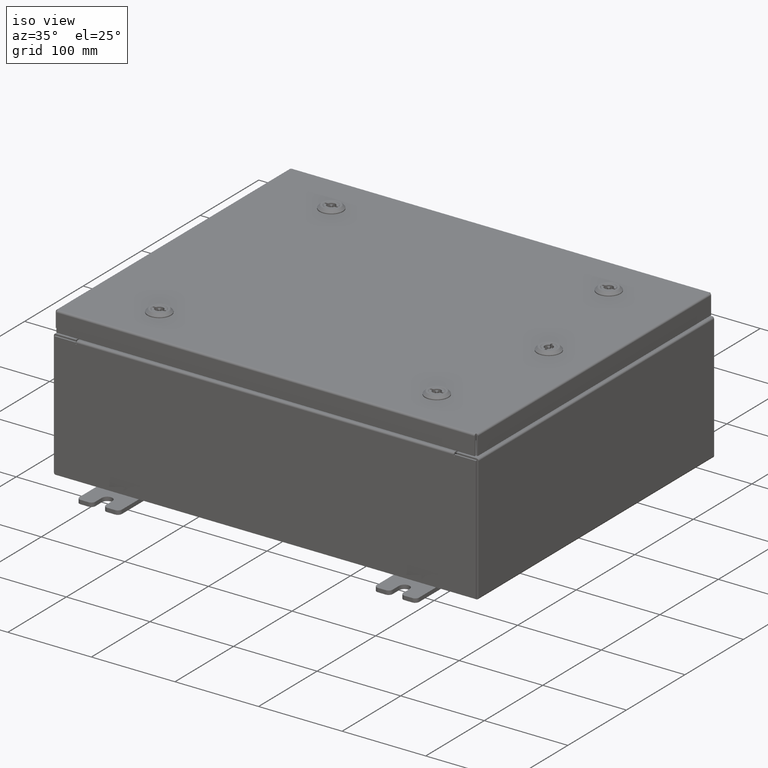
[diagram: clean part render]
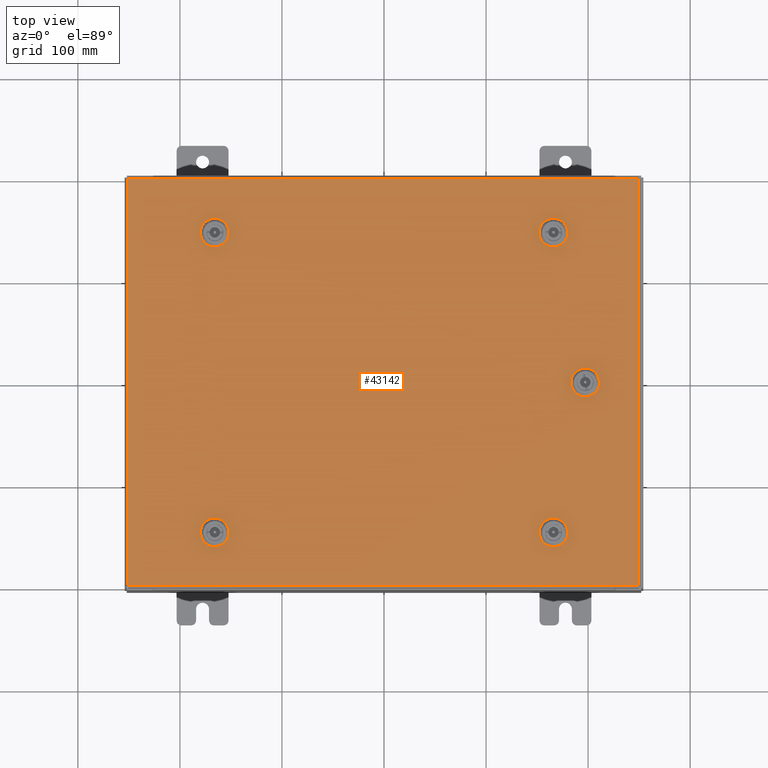
[diagram: tour spotlight — one face highlighted and labeled with its STEP entity id]
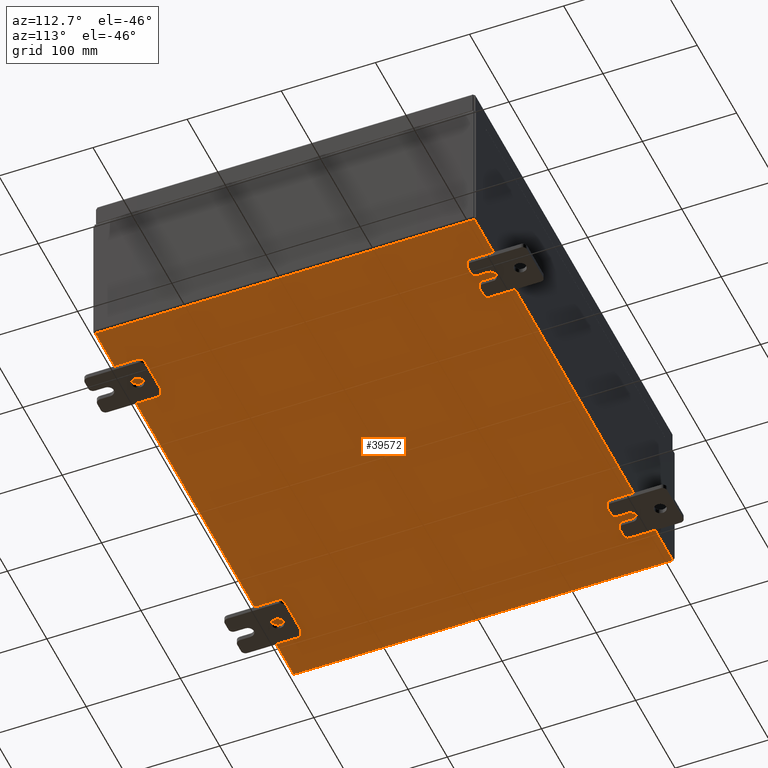
[diagram: tour spotlight — one face highlighted and labeled with its STEP entity id]
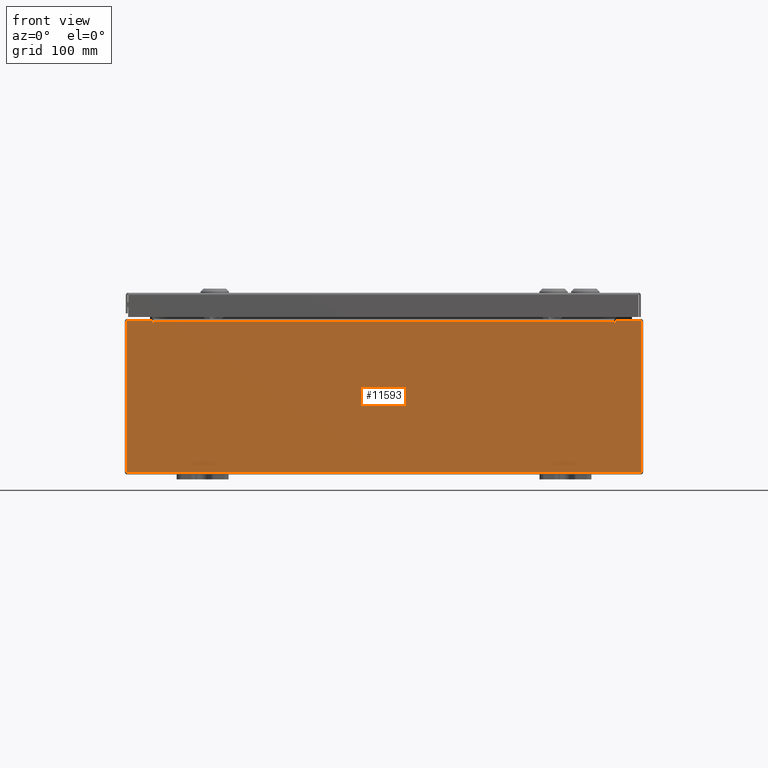
[diagram: tour spotlight — one face highlighted and labeled with its STEP entity id]
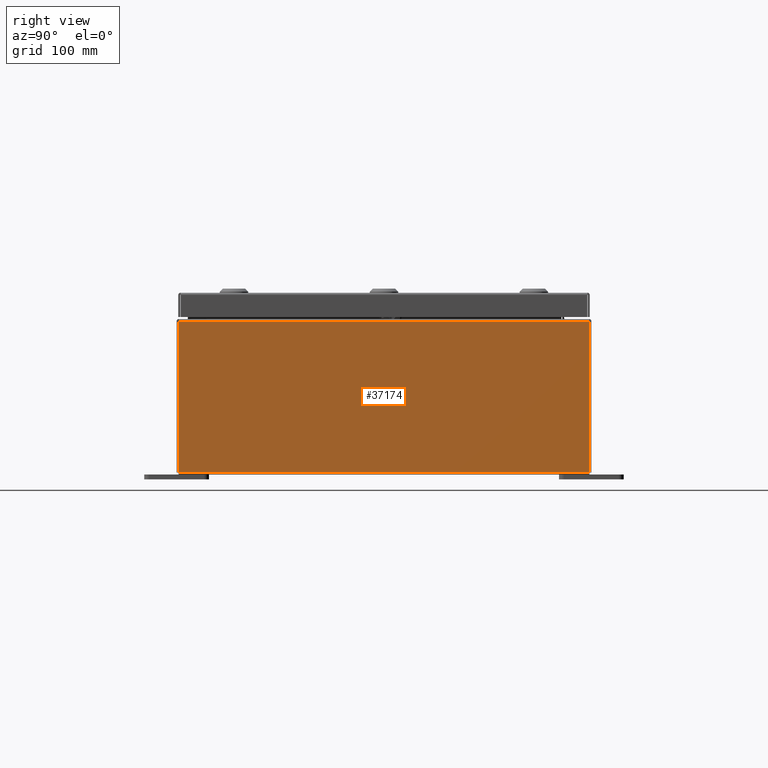
[diagram: tour spotlight — one face highlighted and labeled with its STEP entity id]
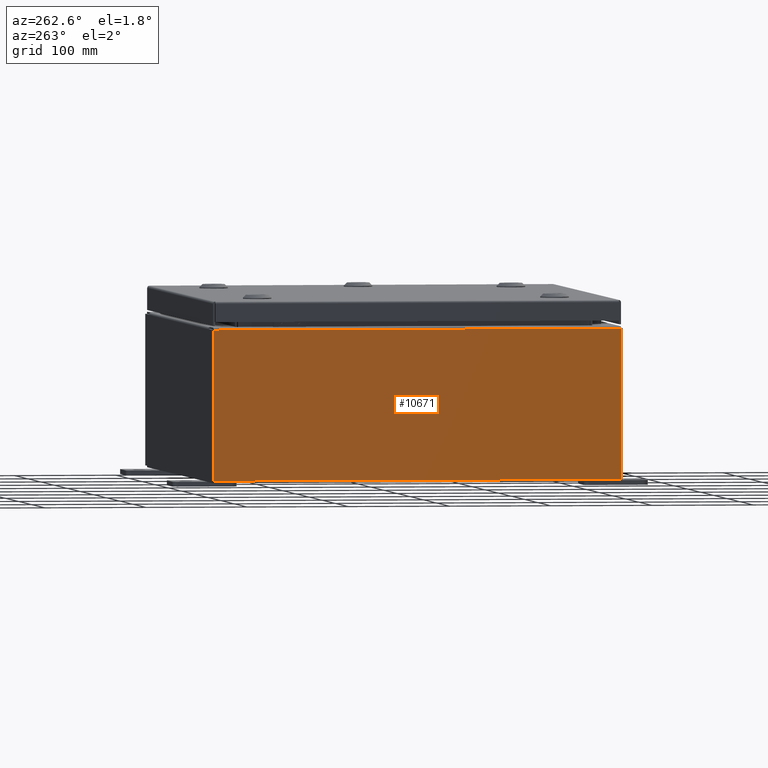
[diagram: tour spotlight — one face highlighted and labeled with its STEP entity id]
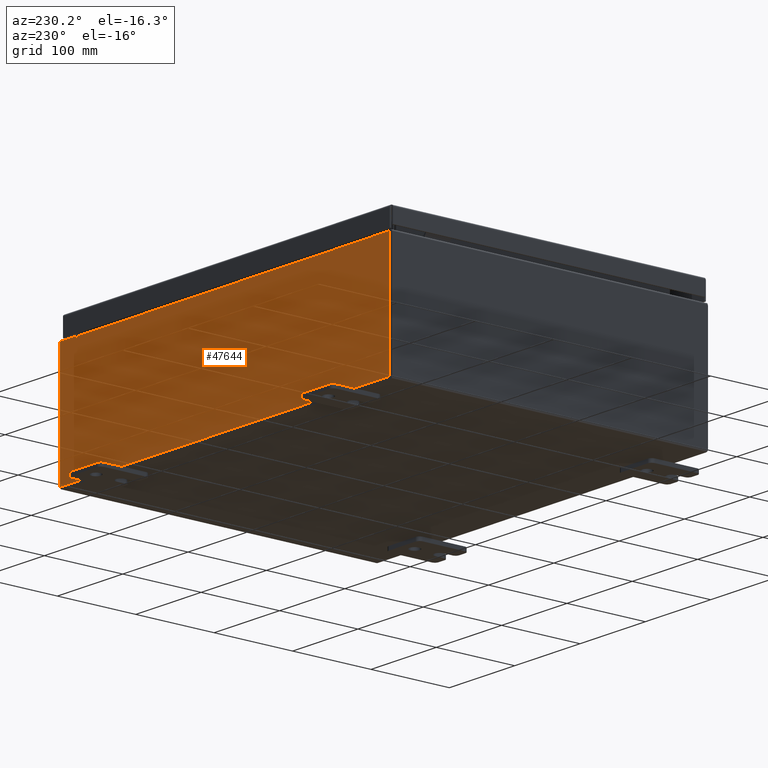
[diagram: tour spotlight — one face highlighted and labeled with its STEP entity id]
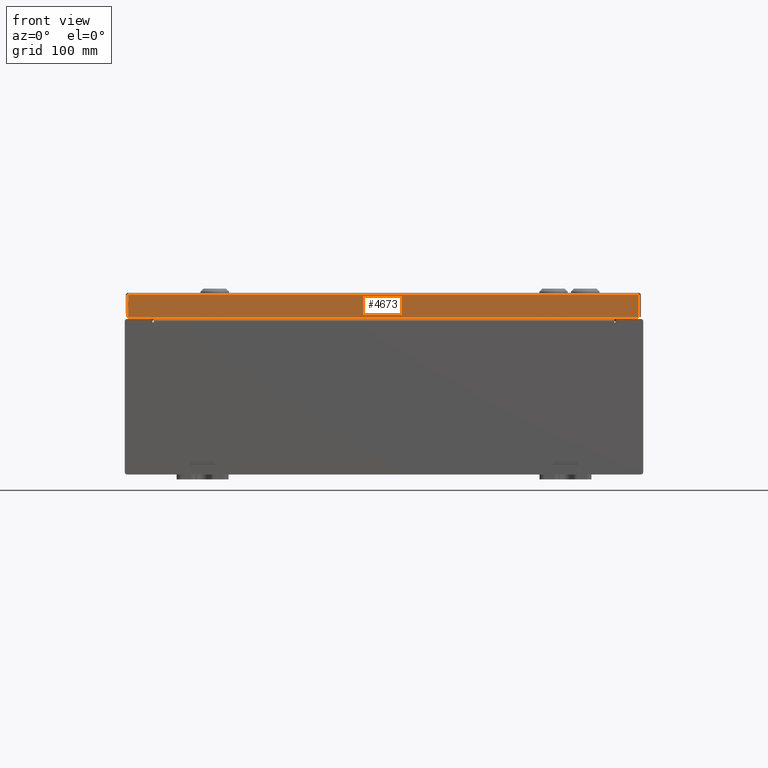
[diagram: tour spotlight — one face highlighted and labeled with its STEP entity id]
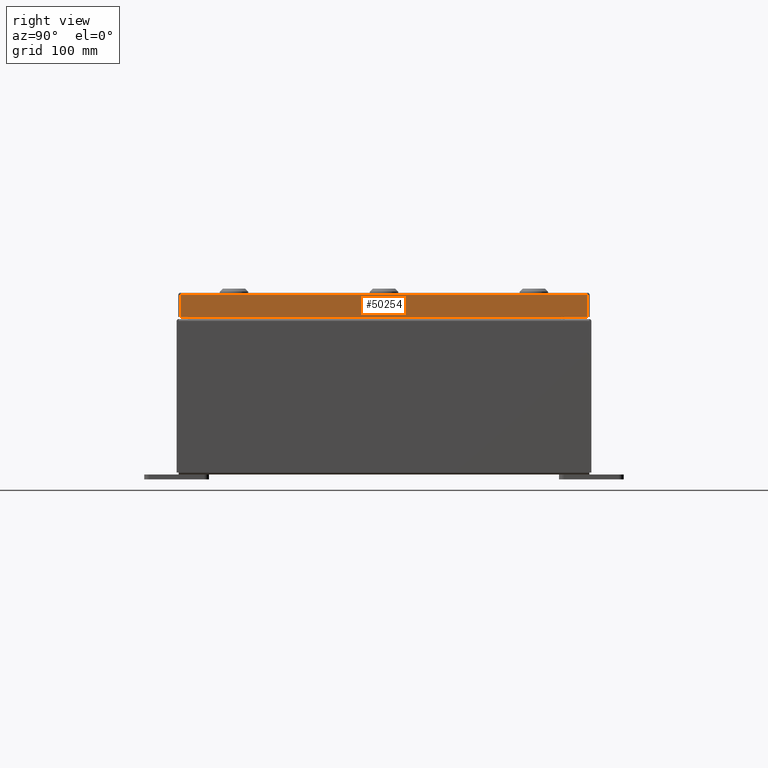
[diagram: tour spotlight — one face highlighted and labeled with its STEP entity id]
A machine part: a face-by-face anatomy tour. The part has 4516 B-rep faces; the first image is the clean iso view, then the 8 largest visible faces are spotlighted one at a time (largest first), each with its STEP entity span.

Face 1 — top view, entity #43142. In plain terms, the highlighted planar face has unit normal (0, 0, -1).
Definition (entity closure, byte-faithful):
#14 = VERTEX_POINT ( 'NONE', #40891 ) ;
#103 = DIRECTION ( 'NONE',  ( 1.000000000000000000, -2.739348669069610000E-015, -6.982962677686248600E-015 ) ) ;
#491 = CIRCLE ( 'NONE', #59018, 0.4424999999999983400 ) ;
#548 = VERTEX_POINT ( 'NONE', #53259 ) ;
#675 = FACE_BOUND ( 'NONE', #35968, .T. ) ;
#1743 = LINE ( 'NONE', #15782, #37094 ) ;
#2672 = CIRCLE ( 'NONE', #8013, 0.4424999999999972800 ) ;
#2674 = DIRECTION ( 'NONE',  ( -1.000000000000000000, -2.739348669069610000E-015, -6.982962677686276200E-015 ) ) ;
#2903 = AXIS2_PLACEMENT_3D ( 'NONE', #38104, #9336, #42989 ) ;
#2942 = CIRCLE ( 'NONE', #29258, 0.4424999999999972800 ) ;
#3120 = ORIENTED_EDGE ( 'NONE', *, *, #55680, .F. ) ;
#3210 = VECTOR ( 'NONE', #9395, 39.37007874015748100 ) ;
#3339 = EDGE_CURVE ( 'NONE', #43604, #50843, #52361, .T. ) ;
#4727 = DIRECTION ( 'NONE',  ( -1.000000000000000000, 0.0000000000000000000, -0.0000000000000000000 ) ) ;
#4827 = CARTESIAN_POINT ( 'NONE',  ( -6.119999999999985000, 5.787799999999993600, 0.0000000000000000000 ) ) ;
#5248 = ORIENTED_EDGE ( 'NONE', *, *, #25560, .F. ) ;
#5475 = CARTESIAN_POINT ( 'NONE',  ( -6.363047624732090800, -6.182799999999987000, -5.245148147835385400E-014 ) ) ;
#6047 = VECTOR ( 'NONE', #2674, 39.37007874015748100 ) ;
#6096 = EDGE_CURVE ( 'NONE', #14, #42291, #54516, .T. ) ;
#6714 = ORIENTED_EDGE ( 'NONE', *, *, #51647, .F. ) ;
#6806 = CARTESIAN_POINT ( 'NONE',  ( 6.562499999999982200, 5.787799999999995400, -2.622574073917692700E-014 ) ) ;
#6880 = CIRCLE ( 'NONE', #16008, 0.4424999999999983400 ) ;
#7260 = VECTOR ( 'NONE', #27442, 39.37007874015748100 ) ;
#7635 = CARTESIAN_POINT ( 'NONE',  ( 6.761952375267867400, -5.392799999999995800, 0.0000000000000000000 ) ) ;
#8013 = AXIS2_PLACEMENT_3D ( 'NONE', #22762, #56301, #27593 ) ;
#8308 = CARTESIAN_POINT ( 'NONE',  ( 9.849800000000001900, -7.849799999999999200, 0.0000000000000000000 ) ) ;
#8428 = EDGE_CURVE ( 'NONE', #17292, #8897, #8620, .T. ) ;
#8475 = ORIENTED_EDGE ( 'NONE', *, *, #38790, .F. ) ;
#8620 = CIRCLE ( 'NONE', #18471, 0.4424999999999983400 ) ;
#8897 = VERTEX_POINT ( 'NONE', #7635 ) ;
#9231 = EDGE_CURVE ( 'NONE', #54732, #51494, #48358, .T. ) ;
#9257 = LINE ( 'NONE', #38329, #57292 ) ;
#9336 = DIRECTION ( 'NONE',  ( -6.982962677686266700E-015, -6.982962677686266700E-015, 1.000000000000000000 ) ) ;
#9395 = DIRECTION ( 'NONE',  ( -1.000000000000000000, -1.369674334534793800E-014, 6.982962677686269100E-015 ) ) ;
#9688 = EDGE_CURVE ( 'NONE', #36220, #43604, #37829, .T. ) ;
#9904 = EDGE_CURVE ( 'NONE', #23118, #11431, #9257, .T. ) ;
#10666 = CIRCLE ( 'NONE', #29716, 0.4424999999999983400 ) ;
#11173 = VERTEX_POINT ( 'NONE', #46055 ) ;
#11410 = CARTESIAN_POINT ( 'NONE',  ( -6.562499999999982200, 5.787799999999993600, 0.0000000000000000000 ) ) ;
#11431 = VERTEX_POINT ( 'NONE', #18726 ) ;
#11652 = DIRECTION ( 'NONE',  ( -1.000000000000000000, 0.0000000000000000000, 6.982962677686261200E-015 ) ) ;
#11657 = VERTEX_POINT ( 'NONE', #24761 ) ;
#12145 = CARTESIAN_POINT ( 'NONE',  ( 7.004999999999980400, 5.787799999999995400, -2.931570172405309100E-014 ) ) ;
#12148 = CARTESIAN_POINT ( 'NONE',  ( 6.363047624732097100, 5.392799999999999400, -2.513300154171122100E-014 ) ) ;
#12185 = ORIENTED_EDGE ( 'NONE', *, *, #62208, .T. ) ;
#12357 = VERTEX_POINT ( 'NONE', #15017 ) ;
#12592 = VECTOR ( 'NONE', #29936, 39.37007874015748100 ) ;
#12869 = DIRECTION ( 'NONE',  ( -0.0000000000000000000, -6.982962677686266700E-015, 1.000000000000000000 ) ) ;
#12979 = ORIENTED_EDGE ( 'NONE', *, *, #23616, .F. ) ;
#12983 = VERTEX_POINT ( 'NONE', #4827 ) ;
#13354 = EDGE_LOOP ( 'NONE', ( #41880, #20878, #12979, #44136, #40499 ) ) ;
#13507 = FACE_BOUND ( 'NONE', #55035, .T. ) ;
#13641 = ORIENTED_EDGE ( 'NONE', *, *, #9904, .F. ) ;
#14005 = PLANE ( 'NONE',  #25665 ) ;
#14141 = EDGE_LOOP ( 'NONE', ( #58407, #19787, #45624, #40394, #45679 ) ) ;
#14261 = CARTESIAN_POINT ( 'NONE',  ( 6.363047624732090800, 6.182799999999987000, -2.513300154171122100E-014 ) ) ;
#14442 = AXIS2_PLACEMENT_3D ( 'NONE', #11410, #45052, #16255 ) ;
#14552 = CIRCLE ( 'NONE', #49168, 0.4424999999999972800 ) ;
#14981 = EDGE_CURVE ( 'NONE', #11657, #19286, #28807, .T. ) ;
#15017 = CARTESIAN_POINT ( 'NONE',  ( -6.363047624732097100, 5.392799999999997600, 0.0000000000000000000 ) ) ;
#15425 = AXIS2_PLACEMENT_3D ( 'NONE', #6806, #40441, #11652 ) ;
#15514 = VERTEX_POINT ( 'NONE', #41762 ) ;
#15782 = CARTESIAN_POINT ( 'NONE',  ( -6.363047624732090800, 6.182799999999985200, 0.0000000000000000000 ) ) ;
#15811 = EDGE_CURVE ( 'NONE', #34041, #31005, #57217, .T. ) ;
#15897 = CARTESIAN_POINT ( 'NONE',  ( 6.562499999999982200, -5.787799999999993600, -2.294752314677981200E-014 ) ) ;
#15986 = EDGE_CURVE ( 'NONE', #43703, #12357, #52728, .T. ) ;
#16008 = AXIS2_PLACEMENT_3D ( 'NONE', #22934, #56466, #27772 ) ;
#16255 = DIRECTION ( 'NONE',  ( 1.000000000000000000, 0.0000000000000000000, 0.0000000000000000000 ) ) ;
#16620 = CARTESIAN_POINT ( 'NONE',  ( -6.363047624732097100, 5.392799999999997600, 0.0000000000000000000 ) ) ;
#17063 = CIRCLE ( 'NONE', #2903, 0.4424999999999972800 ) ;
#17179 = LINE ( 'NONE', #36280, #42721 ) ;
#17292 = VERTEX_POINT ( 'NONE', #45743 ) ;
#17484 = CARTESIAN_POINT ( 'NONE',  ( 6.562499999999982200, -5.787799999999993600, -2.294752314677981200E-014 ) ) ;
#17677 = CARTESIAN_POINT ( 'NONE',  ( -9.849799999999996600, -7.849799999999999200, 0.0000000000000000000 ) ) ;
#18471 = AXIS2_PLACEMENT_3D ( 'NONE', #17484, #51030, #22295 ) ;
#18726 = CARTESIAN_POINT ( 'NONE',  ( 6.761952375267867400, 5.392799999999998500, -2.731847993664263300E-014 ) ) ;
#18888 = CIRCLE ( 'NONE', #32234, 0.4424999999999983400 ) ;
#19009 = ORIENTED_EDGE ( 'NONE', *, *, #23414, .F. ) ;
#19286 = VERTEX_POINT ( 'NONE', #57541 ) ;
#19324 = ORIENTED_EDGE ( 'NONE', *, *, #46327, .T. ) ;
#19352 = VECTOR ( 'NONE', #27424, 39.37007874015748100 ) ;
#19787 = ORIENTED_EDGE ( 'NONE', *, *, #52651, .F. ) ;
#20211 = CARTESIAN_POINT ( 'NONE',  ( -6.562499999999982200, -5.787799999999995400, -4.917326388595673900E-014 ) ) ;
#20256 = CARTESIAN_POINT ( 'NONE',  ( -9.849799999999996600, 7.849800000000001000, 0.0000000000000000000 ) ) ;
#20408 = CARTESIAN_POINT ( 'NONE',  ( -6.562499999999982200, 5.787799999999993600, 0.0000000000000000000 ) ) ;
#20529 = ORIENTED_EDGE ( 'NONE', *, *, #6096, .F. ) ;
#20570 = VERTEX_POINT ( 'NONE', #5475 ) ;
#20719 = DIRECTION ( 'NONE',  ( 1.000000000000000000, 0.0000000000000000000, 6.982962677686261200E-015 ) ) ;
#20780 = CARTESIAN_POINT ( 'NONE',  ( 7.392800000000016200, 0.1994523752679053800, 0.0000000000000000000 ) ) ;
#20878 = ORIENTED_EDGE ( 'NONE', *, *, #55688, .F. ) ;
#21052 = CARTESIAN_POINT ( 'NONE',  ( 6.363047624732097100, -5.392799999999997600, -2.185478394931410600E-014 ) ) ;
#21203 = CARTESIAN_POINT ( 'NONE',  ( 6.562499999999982200, 5.787799999999995400, -2.622574073917692700E-014 ) ) ;
#21439 = CIRCLE ( 'NONE', #50840, 0.4424999999999972800 ) ;
#22295 = DIRECTION ( 'NONE',  ( 1.000000000000000000, 0.0000000000000000000, 6.982962677686261200E-015 ) ) ;
#22762 = CARTESIAN_POINT ( 'NONE',  ( 6.562499999999982200, 5.787799999999995400, -2.622574073917692700E-014 ) ) ;
#22934 = CARTESIAN_POINT ( 'NONE',  ( -6.562499999999982200, 5.787799999999993600, 0.0000000000000000000 ) ) ;
#23118 = VERTEX_POINT ( 'NONE', #12148 ) ;
#23414 = EDGE_CURVE ( 'NONE', #42291, #54732, #49382, .T. ) ;
#23616 = EDGE_CURVE ( 'NONE', #27076, #24485, #44917, .T. ) ;
#23906 = CARTESIAN_POINT ( 'NONE',  ( -6.119999999999985000, -5.787799999999995400, -4.917326388595673900E-014 ) ) ;
#23980 = DIRECTION ( 'NONE',  ( 0.0000000000000000000, 0.0000000000000000000, 1.000000000000000000 ) ) ;
#24485 = VERTEX_POINT ( 'NONE', #42201 ) ;
#24761 = CARTESIAN_POINT ( 'NONE',  ( 6.761952375267863900, 6.182799999999993200, 0.0000000000000000000 ) ) ;
#24897 = EDGE_LOOP ( 'NONE', ( #3120, #60088, #60729, #46145, #59040 ) ) ;
#25048 = DIRECTION ( 'NONE',  ( 0.0000000000000000000, 1.000000000000000000, 6.982962677686269100E-015 ) ) ;
#25233 = DIRECTION ( 'NONE',  ( 1.000000000000000000, 0.0000000000000000000, 0.0000000000000000000 ) ) ;
#25560 = EDGE_CURVE ( 'NONE', #19286, #23118, #2672, .T. ) ;
#25665 = AXIS2_PLACEMENT_3D ( 'NONE', #28735, #33529, #4727 ) ;
#26027 = VECTOR ( 'NONE', #46858, 39.37007874015748100 ) ;
#26036 = DIRECTION ( 'NONE',  ( -1.000000000000000000, 0.0000000000000000000, 6.982962677686261200E-015 ) ) ;
#26272 = FACE_BOUND ( 'NONE', #24897, .T. ) ;
#26873 = DIRECTION ( 'NONE',  ( -0.0000000000000000000, -6.982962677686266700E-015, 1.000000000000000000 ) ) ;
#27076 = VERTEX_POINT ( 'NONE', #60448 ) ;
#27424 = DIRECTION ( 'NONE',  ( -1.000000000000000000, 2.739348669069610000E-015, 1.946424297521510000E-029 ) ) ;
#27442 = DIRECTION ( 'NONE',  ( 0.0000000000000000000, 1.000000000000000000, 0.0000000000000000000 ) ) ;
#27443 = CARTESIAN_POINT ( 'NONE',  ( -9.849799999999996600, 7.849800000000001000, 0.0000000000000000000 ) ) ;
#27593 = DIRECTION ( 'NONE',  ( -1.000000000000000000, 0.0000000000000000000, 6.982962677686269100E-015 ) ) ;
#27657 = DIRECTION ( 'NONE',  ( 1.000000000000000000, -0.0000000000000000000, -0.0000000000000000000 ) ) ;
#27772 = DIRECTION ( 'NONE',  ( 1.000000000000000000, 0.0000000000000000000, 0.0000000000000000000 ) ) ;
#27859 = DIRECTION ( 'NONE',  ( 0.0000000000000000000, 0.0000000000000000000, 1.000000000000000000 ) ) ;
#28735 = CARTESIAN_POINT ( 'NONE',  ( 0.0000000000000000000, 0.0000000000000000000, 0.0000000000000000000 ) ) ;
#28807 = LINE ( 'NONE', #14261, #3210 ) ;
#29258 = AXIS2_PLACEMENT_3D ( 'NONE', #41649, #12869, #46473 ) ;
#29716 = AXIS2_PLACEMENT_3D ( 'NONE', #21203, #54736, #26036 ) ;
#29766 = CARTESIAN_POINT ( 'NONE',  ( 8.182800000000009200, -0.1994523752678676000, 0.0000000000000000000 ) ) ;
#29877 = CARTESIAN_POINT ( 'NONE',  ( 6.363047624732090800, -6.182799999999985200, -2.731847993664263300E-014 ) ) ;
#29936 = DIRECTION ( 'NONE',  ( 0.0000000000000000000, -1.000000000000000000, 0.0000000000000000000 ) ) ;
#31005 = VERTEX_POINT ( 'NONE', #61387 ) ;
#31336 = CARTESIAN_POINT ( 'NONE',  ( 9.849800000000001900, 7.849800000000001000, -1.092739197465705300E-015 ) ) ;
#32234 = AXIS2_PLACEMENT_3D ( 'NONE', #55593, #26873, #60372 ) ;
#33253 = VECTOR ( 'NONE', #58525, 39.37007874015748100 ) ;
#33529 = DIRECTION ( 'NONE',  ( 0.0000000000000000000, 0.0000000000000000000, -1.000000000000000000 ) ) ;
#34041 = VERTEX_POINT ( 'NONE', #44407 ) ;
#35079 = DIRECTION ( 'NONE',  ( -1.000000000000000000, 1.369674334534793800E-014, 0.0000000000000000000 ) ) ;
#35087 = VERTEX_POINT ( 'NONE', #12145 ) ;
#35636 = VECTOR ( 'NONE', #27657, 39.37007874015748100 ) ;
#35968 = EDGE_LOOP ( 'NONE', ( #50217, #6714, #8475, #13641, #5248 ) ) ;
#36132 = DIRECTION ( 'NONE',  ( -1.000000000000000000, -0.0000000000000000000, -0.0000000000000000000 ) ) ;
#36220 = VERTEX_POINT ( 'NONE', #58128 ) ;
#36280 = CARTESIAN_POINT ( 'NONE',  ( 8.182800000000003800, 0.1994523752679009100, 0.0000000000000000000 ) ) ;
#36304 = CARTESIAN_POINT ( 'NONE',  ( 6.363047624732097100, -5.392799999999997600, -2.185478394931410600E-014 ) ) ;
#36684 = ORIENTED_EDGE ( 'NONE', *, *, #3339, .T. ) ;
#37094 = VECTOR ( 'NONE', #35079, 39.37007874015748100 ) ;
#37534 = FACE_OUTER_BOUND ( 'NONE', #59026, .T. ) ;
#37829 = LINE ( 'NONE', #31336, #61793 ) ;
#38104 = CARTESIAN_POINT ( 'NONE',  ( 6.562499999999982200, -5.787799999999993600, -2.294752314677981200E-014 ) ) ;
#38329 = CARTESIAN_POINT ( 'NONE',  ( 6.363047624732097100, 5.392799999999999400, -2.513300154171122100E-014 ) ) ;
#38457 = VECTOR ( 'NONE', #54979, 39.37007874015748100 ) ;
#38790 = EDGE_CURVE ( 'NONE', #11431, #35087, #10666, .T. ) ;
#40394 = ORIENTED_EDGE ( 'NONE', *, *, #54023, .F. ) ;
#40441 = DIRECTION ( 'NONE',  ( 6.982962677686266700E-015, -0.0000000000000000000, 1.000000000000000000 ) ) ;
#40499 = ORIENTED_EDGE ( 'NONE', *, *, #50296, .F. ) ;
#40891 = CARTESIAN_POINT ( 'NONE',  ( 8.182800000000003800, 0.1994523752679009100, 0.0000000000000000000 ) ) ;
#41649 = CARTESIAN_POINT ( 'NONE',  ( -6.562499999999982200, -5.787799999999995400, -4.917326388595673900E-014 ) ) ;
#41762 = CARTESIAN_POINT ( 'NONE',  ( -6.761952375267863900, 6.182799999999990500, 0.0000000000000000000 ) ) ;
#41880 = ORIENTED_EDGE ( 'NONE', *, *, #47027, .F. ) ;
#42138 = EDGE_CURVE ( 'NONE', #48807, #27076, #2942, .T. ) ;
#42201 = CARTESIAN_POINT ( 'NONE',  ( -6.761952375267867400, -5.392799999999998500, -4.698778549102532700E-014 ) ) ;
#42291 = VERTEX_POINT ( 'NONE', #52067 ) ;
#42721 = VECTOR ( 'NONE', #60135, 39.37007874015748100 ) ;
#42935 = AXIS2_PLACEMENT_3D ( 'NONE', #56555, #27859, #61349 ) ;
#42989 = DIRECTION ( 'NONE',  ( 1.000000000000000000, 0.0000000000000000000, 6.982962677686269100E-015 ) ) ;
#43142 = ADVANCED_FACE ( 'NONE', ( #13507, #26272, #51792, #675, #50284, #37534 ), #14005, .F. ) ;
#43604 = VERTEX_POINT ( 'NONE', #27443 ) ;
#43703 = VERTEX_POINT ( 'NONE', #52760 ) ;
#44136 = ORIENTED_EDGE ( 'NONE', *, *, #42138, .F. ) ;
#44407 = CARTESIAN_POINT ( 'NONE',  ( 6.363047624732090800, -6.182799999999985200, -2.731847993664263300E-014 ) ) ;
#44917 = LINE ( 'NONE', #46537, #19352 ) ;
#45052 = DIRECTION ( 'NONE',  ( 0.0000000000000000000, 0.0000000000000000000, 1.000000000000000000 ) ) ;
#45624 = ORIENTED_EDGE ( 'NONE', *, *, #50418, .F. ) ;
#45679 = ORIENTED_EDGE ( 'NONE', *, *, #61294, .F. ) ;
#45743 = CARTESIAN_POINT ( 'NONE',  ( 7.004999999999980400, -5.787799999999993600, -1.985756216190364800E-014 ) ) ;
#46055 = CARTESIAN_POINT ( 'NONE',  ( 9.849800000000001900, -7.849799999999999200, 0.0000000000000000000 ) ) ;
#46145 = ORIENTED_EDGE ( 'NONE', *, *, #15811, .F. ) ;
#46172 = EDGE_CURVE ( 'NONE', #31005, #17292, #491, .T. ) ;
#46327 = EDGE_CURVE ( 'NONE', #11173, #36220, #56825, .T. ) ;
#46473 = DIRECTION ( 'NONE',  ( 0.0000000000000000000, 1.000000000000000000, 6.982962677686269100E-015 ) ) ;
#46537 = CARTESIAN_POINT ( 'NONE',  ( -6.363047624732097100, -5.392799999999999400, -4.698778549102532700E-014 ) ) ;
#46827 = CIRCLE ( 'NONE', #15425, 0.4424999999999983400 ) ;
#46858 = DIRECTION ( 'NONE',  ( 1.000000000000000000, 1.369674334534793800E-014, 9.732121487607470400E-029 ) ) ;
#47027 = EDGE_CURVE ( 'NONE', #48587, #20570, #51550, .T. ) ;
#48358 = CIRCLE ( 'NONE', #51446, 0.4424999999999983400 ) ;
#48399 = LINE ( 'NONE', #56559, #35636 ) ;
#48587 = VERTEX_POINT ( 'NONE', #51293 ) ;
#48807 = VERTEX_POINT ( 'NONE', #23906 ) ;
#49168 = AXIS2_PLACEMENT_3D ( 'NONE', #20211, #53735, #25048 ) ;
#49382 = LINE ( 'NONE', #20780, #62076 ) ;
#49464 = DIRECTION ( 'NONE',  ( -6.982962677686266700E-015, -6.982962677686266700E-015, 1.000000000000000000 ) ) ;
#49519 = DIRECTION ( 'NONE',  ( -8.218046007208770500E-015, -1.000000000000000000, 0.0000000000000000000 ) ) ;
#50217 = ORIENTED_EDGE ( 'NONE', *, *, #14981, .F. ) ;
#50284 = FACE_BOUND ( 'NONE', #14141, .T. ) ;
#50296 = EDGE_CURVE ( 'NONE', #20570, #48807, #14552, .T. ) ;
#50418 = EDGE_CURVE ( 'NONE', #548, #15514, #1743, .T. ) ;
#50840 = AXIS2_PLACEMENT_3D ( 'NONE', #20408, #53931, #25233 ) ;
#50843 = VERTEX_POINT ( 'NONE', #17677 ) ;
#51012 = ORIENTED_EDGE ( 'NONE', *, *, #9231, .F. ) ;
#51030 = DIRECTION ( 'NONE',  ( -6.982962677686266700E-015, -6.982962677686266700E-015, 1.000000000000000000 ) ) ;
#51293 = CARTESIAN_POINT ( 'NONE',  ( -6.761952375267863900, -6.182799999999993200, 0.0000000000000000000 ) ) ;
#51446 = AXIS2_PLACEMENT_3D ( 'NONE', #52720, #23980, #57500 ) ;
#51494 = VERTEX_POINT ( 'NONE', #29766 ) ;
#51550 = LINE ( 'NONE', #61039, #26027 ) ;
#51647 = EDGE_CURVE ( 'NONE', #35087, #11657, #46827, .T. ) ;
#51792 = FACE_BOUND ( 'NONE', #13354, .T. ) ;
#52067 = CARTESIAN_POINT ( 'NONE',  ( 7.392800000000016200, 0.1994523752679053200, 0.0000000000000000000 ) ) ;
#52333 = VERTEX_POINT ( 'NONE', #21052 ) ;
#52361 = LINE ( 'NONE', #20256, #12592 ) ;
#52651 = EDGE_CURVE ( 'NONE', #15514, #43703, #6880, .T. ) ;
#52720 = CARTESIAN_POINT ( 'NONE',  ( 7.787800000000009600, 1.529834876451987200E-014, 0.0000000000000000000 ) ) ;
#52728 = LINE ( 'NONE', #16620, #38457 ) ;
#52760 = CARTESIAN_POINT ( 'NONE',  ( -6.761952375267867400, 5.392799999999995800, 0.0000000000000000000 ) ) ;
#53259 = CARTESIAN_POINT ( 'NONE',  ( -6.363047624732090800, 6.182799999999985200, 0.0000000000000000000 ) ) ;
#53735 = DIRECTION ( 'NONE',  ( -0.0000000000000000000, -6.982962677686266700E-015, 1.000000000000000000 ) ) ;
#53931 = DIRECTION ( 'NONE',  ( 0.0000000000000000000, 0.0000000000000000000, 1.000000000000000000 ) ) ;
#53982 = ORIENTED_EDGE ( 'NONE', *, *, #57703, .F. ) ;
#54023 = EDGE_CURVE ( 'NONE', #12983, #548, #60083, .T. ) ;
#54516 = CIRCLE ( 'NONE', #42935, 0.4424999999999972800 ) ;
#54732 = VERTEX_POINT ( 'NONE', #61160 ) ;
#54736 = DIRECTION ( 'NONE',  ( 6.982962677686266700E-015, -0.0000000000000000000, 1.000000000000000000 ) ) ;
#54759 = ORIENTED_EDGE ( 'NONE', *, *, #9688, .T. ) ;
#54979 = DIRECTION ( 'NONE',  ( 1.000000000000000000, 2.739348669069610000E-015, -0.0000000000000000000 ) ) ;
#55035 = EDGE_LOOP ( 'NONE', ( #53982, #51012, #19009, #20529 ) ) ;
#55593 = CARTESIAN_POINT ( 'NONE',  ( -6.562499999999982200, -5.787799999999995400, -4.917326388595673900E-014 ) ) ;
#55645 = LINE ( 'NONE', #36304, #6047 ) ;
#55680 = EDGE_CURVE ( 'NONE', #8897, #52333, #55645, .T. ) ;
#55688 = EDGE_CURVE ( 'NONE', #24485, #48587, #18888, .T. ) ;
#56301 = DIRECTION ( 'NONE',  ( 6.982962677686266700E-015, -0.0000000000000000000, 1.000000000000000000 ) ) ;
#56466 = DIRECTION ( 'NONE',  ( 0.0000000000000000000, 0.0000000000000000000, 1.000000000000000000 ) ) ;
#56555 = CARTESIAN_POINT ( 'NONE',  ( 7.787800000000009600, 1.529834876451987200E-014, 0.0000000000000000000 ) ) ;
#56559 = CARTESIAN_POINT ( 'NONE',  ( -9.849799999999996600, -7.849799999999999200, 0.0000000000000000000 ) ) ;
#56825 = LINE ( 'NONE', #8308, #7260 ) ;
#57217 = LINE ( 'NONE', #29877, #33253 ) ;
#57292 = VECTOR ( 'NONE', #103, 39.37007874015748100 ) ;
#57500 = DIRECTION ( 'NONE',  ( 1.000000000000000000, 0.0000000000000000000, 0.0000000000000000000 ) ) ;
#57541 = CARTESIAN_POINT ( 'NONE',  ( 6.363047624732090800, 6.182799999999987000, -2.513300154171122100E-014 ) ) ;
#57703 = EDGE_CURVE ( 'NONE', #51494, #14, #17179, .T. ) ;
#58128 = CARTESIAN_POINT ( 'NONE',  ( 9.849800000000001900, 7.849800000000001000, -1.092739197465705300E-015 ) ) ;
#58407 = ORIENTED_EDGE ( 'NONE', *, *, #15986, .F. ) ;
#58525 = DIRECTION ( 'NONE',  ( 1.000000000000000000, -1.369674334534793800E-014, 6.982962677686171300E-015 ) ) ;
#59018 = AXIS2_PLACEMENT_3D ( 'NONE', #15897, #49464, #20719 ) ;
#59026 = EDGE_LOOP ( 'NONE', ( #12185, #19324, #54759, #36684 ) ) ;
#59040 = ORIENTED_EDGE ( 'NONE', *, *, #59685, .F. ) ;
#59685 = EDGE_CURVE ( 'NONE', #52333, #34041, #17063, .T. ) ;
#60083 = CIRCLE ( 'NONE', #14442, 0.4424999999999972800 ) ;
#60088 = ORIENTED_EDGE ( 'NONE', *, *, #8428, .F. ) ;
#60135 = DIRECTION ( 'NONE',  ( -8.218046007208852600E-015, 1.000000000000000000, -0.0000000000000000000 ) ) ;
#60372 = DIRECTION ( 'NONE',  ( 0.0000000000000000000, 1.000000000000000000, 6.982962677686270700E-015 ) ) ;
#60448 = CARTESIAN_POINT ( 'NONE',  ( -6.363047624732097100, -5.392799999999999400, -4.698778549102532700E-014 ) ) ;
#60729 = ORIENTED_EDGE ( 'NONE', *, *, #46172, .F. ) ;
#61039 = CARTESIAN_POINT ( 'NONE',  ( -6.363047624732090800, -6.182799999999987000, -5.245148147835385400E-014 ) ) ;
#61160 = CARTESIAN_POINT ( 'NONE',  ( 7.392800000000012700, -0.1994523752678671000, 0.0000000000000000000 ) ) ;
#61294 = EDGE_CURVE ( 'NONE', #12357, #12983, #21439, .T. ) ;
#61349 = DIRECTION ( 'NONE',  ( 1.000000000000000000, 0.0000000000000000000, 0.0000000000000000000 ) ) ;
#61387 = CARTESIAN_POINT ( 'NONE',  ( 6.761952375267863900, -6.182799999999990500, -2.513300154171122100E-014 ) ) ;
#61793 = VECTOR ( 'NONE', #36132, 39.37007874015748100 ) ;
#62076 = VECTOR ( 'NONE', #49519, 39.37007874015748100 ) ;
#62208 = EDGE_CURVE ( 'NONE', #50843, #11173, #48399, .T. ) ;

Face 2 — auxiliary view, entity #39572. In plain terms, the highlighted planar face has unit normal (0, 0, -1).
Definition (entity closure, byte-faithful):
#910 = CARTESIAN_POINT ( 'NONE',  ( 9.912300000000000100, 7.925300000000000000, -0.07469999999999994700 ) ) ;
#2335 = FACE_OUTER_BOUND ( 'NONE', #44078, .T. ) ;
#3405 = CARTESIAN_POINT ( 'NONE',  ( -9.912300000000000100, -7.925300000000000000, -0.07469999999999994700 ) ) ;
#4708 = DIRECTION ( 'NONE',  ( 0.0000000000000000000, 0.0000000000000000000, -1.000000000000000000 ) ) ;
#4722 = VECTOR ( 'NONE', #29745, 39.37007874015748100 ) ;
#8839 = VECTOR ( 'NONE', #11954, 39.37007874015748100 ) ;
#9997 = EDGE_CURVE ( 'NONE', #39556, #14228, #17564, .T. ) ;
#11171 = CARTESIAN_POINT ( 'NONE',  ( 9.912300000000000100, 7.925300000000000000, -0.07469999999999994700 ) ) ;
#11954 = DIRECTION ( 'NONE',  ( 1.000000000000000000, 0.0000000000000000000, 0.0000000000000000000 ) ) ;
#12967 = DIRECTION ( 'NONE',  ( -0.0000000000000000000, 1.000000000000000000, -0.0000000000000000000 ) ) ;
#14228 = VERTEX_POINT ( 'NONE', #28263 ) ;
#15869 = DIRECTION ( 'NONE',  ( -1.000000000000000000, -0.0000000000000000000, -0.0000000000000000000 ) ) ;
#17284 = LINE ( 'NONE', #22626, #31587 ) ;
#17564 = LINE ( 'NONE', #910, #4722 ) ;
#22626 = CARTESIAN_POINT ( 'NONE',  ( -9.912300000000000100, -7.925300000000000000, -0.07469999999999994700 ) ) ;
#23544 = CARTESIAN_POINT ( 'NONE',  ( -9.912300000000000100, 7.925300000000000000, -0.07470000000000000300 ) ) ;
#27493 = VECTOR ( 'NONE', #15869, 39.37007874015748100 ) ;
#28263 = CARTESIAN_POINT ( 'NONE',  ( 9.912300000000000100, -7.925300000000000000, -0.07470000000000000300 ) ) ;
#29745 = DIRECTION ( 'NONE',  ( -0.0000000000000000000, -1.000000000000000000, -0.0000000000000000000 ) ) ;
#30511 = LINE ( 'NONE', #59226, #27493 ) ;
#31587 = VECTOR ( 'NONE', #12967, 39.37007874015748100 ) ;
#32519 = EDGE_CURVE ( 'NONE', #39556, #36823, #30511, .T. ) ;
#33513 = CARTESIAN_POINT ( 'NONE',  ( 0.0000000000000000000, 0.0000000000000000000, -0.07470000000000000300 ) ) ;
#33581 = ORIENTED_EDGE ( 'NONE', *, *, #9997, .T. ) ;
#36353 = ORIENTED_EDGE ( 'NONE', *, *, #42094, .T. ) ;
#36609 = ORIENTED_EDGE ( 'NONE', *, *, #32519, .F. ) ;
#36823 = VERTEX_POINT ( 'NONE', #23544 ) ;
#38322 = DIRECTION ( 'NONE',  ( -1.000000000000000000, 0.0000000000000000000, -0.0000000000000000000 ) ) ;
#39556 = VERTEX_POINT ( 'NONE', #11171 ) ;
#39572 = ADVANCED_FACE ( 'NONE', ( #2335 ), #62172, .T. ) ;
#39778 = ORIENTED_EDGE ( 'NONE', *, *, #58550, .F. ) ;
#40173 = AXIS2_PLACEMENT_3D ( 'NONE', #33513, #4708, #38322 ) ;
#40738 = CARTESIAN_POINT ( 'NONE',  ( -10.00000000000000000, -7.925300000000000000, -0.07470000000000000300 ) ) ;
#42094 = EDGE_CURVE ( 'NONE', #56663, #36823, #17284, .T. ) ;
#44078 = EDGE_LOOP ( 'NONE', ( #39778, #36353, #36609, #33581 ) ) ;
#56663 = VERTEX_POINT ( 'NONE', #3405 ) ;
#58328 = LINE ( 'NONE', #40738, #8839 ) ;
#58550 = EDGE_CURVE ( 'NONE', #56663, #14228, #58328, .T. ) ;
#59226 = CARTESIAN_POINT ( 'NONE',  ( -10.00000000000000000, 7.925300000000000000, -0.07470000000000000300 ) ) ;
#62172 = PLANE ( 'NONE',  #40173 ) ;

Face 3 — front view, entity #11593. In plain terms, the highlighted planar face has unit normal (-0, 1, -0).
Definition (entity closure, byte-faithful):
#81 = ORIENTED_EDGE ( 'NONE', *, *, #49106, .F. ) ;
#433 = ORIENTED_EDGE ( 'NONE', *, *, #26132, .T. ) ;
#1879 = LINE ( 'NONE', #12749, #48478 ) ;
#2231 = CARTESIAN_POINT ( 'NONE',  ( 8.887200000000000000, 0.0000000000000000000, 0.0000000000000000000 ) ) ;
#4265 = DIRECTION ( 'NONE',  ( 0.0000000000000000000, 0.0000000000000000000, -1.000000000000000000 ) ) ;
#4697 = VERTEX_POINT ( 'NONE', #54851 ) ;
#4977 = CARTESIAN_POINT ( 'NONE',  ( 0.0000000000000000000, 0.0000000000000000000, 0.0000000000000000000 ) ) ;
#6116 = CARTESIAN_POINT ( 'NONE',  ( -9.925300000000000000, 0.0000000000000000000, 2.925300000000000500 ) ) ;
#6967 = DIRECTION ( 'NONE',  ( -1.000000000000000000, -0.0000000000000000000, -0.0000000000000000000 ) ) ;
#7606 = CARTESIAN_POINT ( 'NONE',  ( -9.925300000000000000, 0.0000000000000000000, -2.925299999999999600 ) ) ;
#8725 = EDGE_CURVE ( 'NONE', #4697, #30960, #36388, .T. ) ;
#8822 = DIRECTION ( 'NONE',  ( -0.0000000000000000000, 1.000000000000000000, -0.0000000000000000000 ) ) ;
#9351 = ORIENTED_EDGE ( 'NONE', *, *, #19204, .F. ) ;
#9400 = ORIENTED_EDGE ( 'NONE', *, *, #52180, .T. ) ;
#9707 = CIRCLE ( 'NONE', #36118, 0.01867500000000003900 ) ;
#10227 = DIRECTION ( 'NONE',  ( 0.0000000000000000000, -1.000000000000000000, 0.0000000000000000000 ) ) ;
#11275 = DIRECTION ( 'NONE',  ( 0.0000000000000000000, 0.0000000000000000000, 1.000000000000000000 ) ) ;
#11383 = EDGE_CURVE ( 'NONE', #35107, #20540, #46793, .T. ) ;
#11593 = ADVANCED_FACE ( 'NONE', ( #39221 ), #39023, .F. ) ;
#12749 = CARTESIAN_POINT ( 'NONE',  ( -9.925300000000000000, 0.0000000000000000000, 2.925300000000000500 ) ) ;
#13626 = LINE ( 'NONE', #22138, #50409 ) ;
#15012 = LINE ( 'NONE', #40052, #26296 ) ;
#15045 = DIRECTION ( 'NONE',  ( 0.0000000000000000000, 0.0000000000000000000, -1.000000000000000000 ) ) ;
#16228 = CARTESIAN_POINT ( 'NONE',  ( 8.887200000000000000, 0.0000000000000000000, 2.874950000000000600 ) ) ;
#17621 = VERTEX_POINT ( 'NONE', #53323 ) ;
#17859 = CARTESIAN_POINT ( 'NONE',  ( -8.887200000000000000, 1.024442997624098700E-016, 2.912300000000000600 ) ) ;
#18649 = CARTESIAN_POINT ( 'NONE',  ( 9.925300000000000000, 0.0000000000000000000, 2.925300000000000500 ) ) ;
#19204 = EDGE_CURVE ( 'NONE', #45498, #29432, #9707, .T. ) ;
#20240 = EDGE_CURVE ( 'NONE', #58064, #42970, #32264, .T. ) ;
#20278 = ORIENTED_EDGE ( 'NONE', *, *, #20240, .T. ) ;
#20315 = CARTESIAN_POINT ( 'NONE',  ( -8.924550000000000000, 0.0000000000000000000, 2.925300000000000500 ) ) ;
#20476 = LINE ( 'NONE', #6116, #33251 ) ;
#20540 = VERTEX_POINT ( 'NONE', #24613 ) ;
#20967 = ORIENTED_EDGE ( 'NONE', *, *, #8725, .T. ) ;
#22123 = VERTEX_POINT ( 'NONE', #37981 ) ;
#22138 = CARTESIAN_POINT ( 'NONE',  ( -8.887200000000000000, -0.0000000000000000000, 0.0000000000000000000 ) ) ;
#23046 = CARTESIAN_POINT ( 'NONE',  ( -9.925300000000000000, 0.0000000000000000000, 2.925300000000000500 ) ) ;
#24613 = CARTESIAN_POINT ( 'NONE',  ( -8.924549999999998200, 0.0000000000000000000, 2.874950000000000600 ) ) ;
#24755 = VERTEX_POINT ( 'NONE', #20315 ) ;
#26132 = EDGE_CURVE ( 'NONE', #30960, #24755, #1879, .T. ) ;
#26296 = VECTOR ( 'NONE', #11275, 39.37007874015748100 ) ;
#26972 = DIRECTION ( 'NONE',  ( 0.0000000000000000000, 0.0000000000000000000, -1.000000000000000000 ) ) ;
#27764 = VECTOR ( 'NONE', #39463, 39.37007874015748100 ) ;
#27874 = AXIS2_PLACEMENT_3D ( 'NONE', #4977, #10227, #43869 ) ;
#28534 = ORIENTED_EDGE ( 'NONE', *, *, #11383, .F. ) ;
#29432 = VERTEX_POINT ( 'NONE', #16228 ) ;
#29838 = CARTESIAN_POINT ( 'NONE',  ( -8.887200000000000000, 1.024442997624098700E-016, 2.912300000000000600 ) ) ;
#30440 = DIRECTION ( 'NONE',  ( 0.0000000000000000000, 0.0000000000000000000, 1.000000000000000000 ) ) ;
#30597 = ORIENTED_EDGE ( 'NONE', *, *, #42613, .T. ) ;
#30960 = VERTEX_POINT ( 'NONE', #23046 ) ;
#31500 = CARTESIAN_POINT ( 'NONE',  ( -8.887200000000000000, -0.0000000000000000000, 2.874950000000000600 ) ) ;
#32264 = LINE ( 'NONE', #48621, #46529 ) ;
#33085 = DIRECTION ( 'NONE',  ( -0.0000000000000000000, 1.000000000000000000, -0.0000000000000000000 ) ) ;
#33251 = VECTOR ( 'NONE', #58755, 39.37007874015748100 ) ;
#33507 = VECTOR ( 'NONE', #36260, 39.37007874015748100 ) ;
#34562 = EDGE_LOOP ( 'NONE', ( #59488, #28534, #50467, #30597, #45976, #9351, #81, #9400, #20278, #47810, #20967, #433 ) ) ;
#35107 = VERTEX_POINT ( 'NONE', #31500 ) ;
#35462 = AXIS2_PLACEMENT_3D ( 'NONE', #37593, #8822, #42454 ) ;
#36118 = AXIS2_PLACEMENT_3D ( 'NONE', #61748, #33085, #4265 ) ;
#36260 = DIRECTION ( 'NONE',  ( -4.340572780400004900E-014, 0.0000000000000000000, -1.000000000000000000 ) ) ;
#36388 = LINE ( 'NONE', #39579, #60356 ) ;
#37593 = CARTESIAN_POINT ( 'NONE',  ( -8.905874999999998200, 0.0000000000000000000, 2.874950000000000600 ) ) ;
#37981 = CARTESIAN_POINT ( 'NONE',  ( 8.924550000000000000, 0.0000000000000000000, 2.925300000000000500 ) ) ;
#39023 = PLANE ( 'NONE',  #27874 ) ;
#39221 = FACE_OUTER_BOUND ( 'NONE', #34562, .T. ) ;
#39463 = DIRECTION ( 'NONE',  ( 1.000000000000000000, 0.0000000000000000000, 0.0000000000000000000 ) ) ;
#39579 = CARTESIAN_POINT ( 'NONE',  ( -9.925300000000000000, 0.0000000000000000000, 2.925300000000000500 ) ) ;
#40052 = CARTESIAN_POINT ( 'NONE',  ( -8.924550000000000000, -0.0000000000000000000, 0.0000000000000000000 ) ) ;
#40489 = VECTOR ( 'NONE', #6967, 39.37007874015748100 ) ;
#40513 = LINE ( 'NONE', #29838, #27764 ) ;
#41107 = CARTESIAN_POINT ( 'NONE',  ( 8.924549999999875600, -0.0000000000000000000, -3.873765880731832600E-013 ) ) ;
#41756 = EDGE_CURVE ( 'NONE', #20540, #24755, #15012, .T. ) ;
#42454 = DIRECTION ( 'NONE',  ( 0.0000000000000000000, 0.0000000000000000000, -1.000000000000000000 ) ) ;
#42613 = EDGE_CURVE ( 'NONE', #55796, #17621, #40513, .T. ) ;
#42970 = VERTEX_POINT ( 'NONE', #56196 ) ;
#43869 = DIRECTION ( 'NONE',  ( 0.0000000000000000000, -0.0000000000000000000, -1.000000000000000000 ) ) ;
#44058 = EDGE_CURVE ( 'NONE', #42970, #4697, #54700, .T. ) ;
#44212 = VECTOR ( 'NONE', #30440, 39.37007874015748100 ) ;
#45258 = CARTESIAN_POINT ( 'NONE',  ( 8.924550000000000000, 0.0000000000000000000, 2.874950000000000600 ) ) ;
#45498 = VERTEX_POINT ( 'NONE', #45258 ) ;
#45976 = ORIENTED_EDGE ( 'NONE', *, *, #57660, .F. ) ;
#46529 = VECTOR ( 'NONE', #15045, 39.37007874015748100 ) ;
#46793 = CIRCLE ( 'NONE', #35462, 0.01867500000000003900 ) ;
#47810 = ORIENTED_EDGE ( 'NONE', *, *, #44058, .T. ) ;
#48478 = VECTOR ( 'NONE', #55948, 39.37007874015748100 ) ;
#48621 = CARTESIAN_POINT ( 'NONE',  ( 9.925300000000000000, 0.0000000000000000000, 2.925300000000000500 ) ) ;
#49106 = EDGE_CURVE ( 'NONE', #22123, #45498, #61967, .T. ) ;
#49213 = DIRECTION ( 'NONE',  ( -0.0000000000000000000, -0.0000000000000000000, 1.000000000000000000 ) ) ;
#50409 = VECTOR ( 'NONE', #26972, 39.37007874015748100 ) ;
#50467 = ORIENTED_EDGE ( 'NONE', *, *, #55335, .F. ) ;
#52180 = EDGE_CURVE ( 'NONE', #22123, #58064, #20476, .T. ) ;
#53323 = CARTESIAN_POINT ( 'NONE',  ( 8.887200000000000000, 0.0000000000000000000, 2.912300000000000600 ) ) ;
#54700 = LINE ( 'NONE', #7606, #40489 ) ;
#54851 = CARTESIAN_POINT ( 'NONE',  ( -9.925300000000000000, 0.0000000000000000000, -2.925299999999999600 ) ) ;
#55335 = EDGE_CURVE ( 'NONE', #55796, #35107, #13626, .T. ) ;
#55796 = VERTEX_POINT ( 'NONE', #17859 ) ;
#55948 = DIRECTION ( 'NONE',  ( 1.000000000000000000, 0.0000000000000000000, 0.0000000000000000000 ) ) ;
#56196 = CARTESIAN_POINT ( 'NONE',  ( 9.925300000000000000, 0.0000000000000000000, -2.925299999999999600 ) ) ;
#56923 = LINE ( 'NONE', #2231, #44212 ) ;
#57660 = EDGE_CURVE ( 'NONE', #29432, #17621, #56923, .T. ) ;
#58064 = VERTEX_POINT ( 'NONE', #18649 ) ;
#58755 = DIRECTION ( 'NONE',  ( 1.000000000000000000, 0.0000000000000000000, 0.0000000000000000000 ) ) ;
#59488 = ORIENTED_EDGE ( 'NONE', *, *, #41756, .F. ) ;
#60356 = VECTOR ( 'NONE', #49213, 39.37007874015748100 ) ;
#61748 = CARTESIAN_POINT ( 'NONE',  ( 8.905875000000000000, 0.0000000000000000000, 2.874950000000000600 ) ) ;
#61967 = LINE ( 'NONE', #41107, #33507 ) ;

Face 4 — right view, entity #37174. In plain terms, the highlighted planar face has unit normal (-1, 0, 0).
Definition (entity closure, byte-faithful):
#1320 = ORIENTED_EDGE ( 'NONE', *, *, #34359, .T. ) ;
#1628 = DIRECTION ( 'NONE',  ( -1.000000000000000000, 0.0000000000000000000, 3.319545939341922000E-015 ) ) ;
#4195 = ORIENTED_EDGE ( 'NONE', *, *, #11922, .F. ) ;
#6913 = LINE ( 'NONE', #57961, #31015 ) ;
#7500 = DIRECTION ( 'NONE',  ( -0.0000000000000000000, -1.000000000000000000, -0.0000000000000000000 ) ) ;
#7924 = CARTESIAN_POINT ( 'NONE',  ( 10.00000000000000000, 7.925300000000000000, 0.01299999999999986400 ) ) ;
#8857 = DIRECTION ( 'NONE',  ( -0.0000000000000000000, -1.000000000000000000, -0.0000000000000000000 ) ) ;
#10123 = DIRECTION ( 'NONE',  ( -3.319545939341922800E-015, 0.0000000000000000000, -1.000000000000000000 ) ) ;
#11524 = VERTEX_POINT ( 'NONE', #38602 ) ;
#11708 = EDGE_CURVE ( 'NONE', #23246, #16997, #26469, .T. ) ;
#11922 = EDGE_CURVE ( 'NONE', #23246, #11524, #42991, .T. ) ;
#15500 = CARTESIAN_POINT ( 'NONE',  ( 10.00000000000000000, 7.925300000000000000, -3.345627304943080600E-014 ) ) ;
#16997 = VERTEX_POINT ( 'NONE', #56970 ) ;
#18959 = VECTOR ( 'NONE', #7500, 39.37007874015748100 ) ;
#20573 = PLANE ( 'NONE',  #56960 ) ;
#23246 = VERTEX_POINT ( 'NONE', #7924 ) ;
#23622 = VECTOR ( 'NONE', #8857, 39.37007874015748100 ) ;
#24968 = VECTOR ( 'NONE', #39440, 39.37007874015748100 ) ;
#26424 = VERTEX_POINT ( 'NONE', #43152 ) ;
#26469 = LINE ( 'NONE', #15500, #24968 ) ;
#31015 = VECTOR ( 'NONE', #10123, 39.37007874015748100 ) ;
#31866 = FACE_OUTER_BOUND ( 'NONE', #54936, .T. ) ;
#32818 = CARTESIAN_POINT ( 'NONE',  ( 10.00000000000002000, 7.925300000000000000, 5.837600000000001000 ) ) ;
#34359 = EDGE_CURVE ( 'NONE', #16997, #26424, #50660, .T. ) ;
#35242 = DIRECTION ( 'NONE',  ( 3.319545939341922000E-015, 0.0000000000000000000, 1.000000000000000000 ) ) ;
#36272 = CARTESIAN_POINT ( 'NONE',  ( 10.00000000000000000, -7.925300000000000000, 0.01299999999999986400 ) ) ;
#37174 = ADVANCED_FACE ( 'NONE', ( #31866 ), #20573, .F. ) ;
#38524 = EDGE_CURVE ( 'NONE', #26424, #11524, #6913, .T. ) ;
#38602 = CARTESIAN_POINT ( 'NONE',  ( 10.00000000000000000, -7.925300000000000000, 0.01299999999999985900 ) ) ;
#39440 = DIRECTION ( 'NONE',  ( 3.319545939341922800E-015, 0.0000000000000000000, 1.000000000000000000 ) ) ;
#42991 = LINE ( 'NONE', #36272, #18959 ) ;
#43152 = CARTESIAN_POINT ( 'NONE',  ( 10.00000000000002000, -7.925300000000000000, 5.837600000000001000 ) ) ;
#50660 = LINE ( 'NONE', #32818, #23622 ) ;
#54308 = CARTESIAN_POINT ( 'NONE',  ( 10.00000000000000000, 0.0000000000000000000, -3.345627304943080600E-014 ) ) ;
#54936 = EDGE_LOOP ( 'NONE', ( #1320, #60618, #4195, #55824 ) ) ;
#55824 = ORIENTED_EDGE ( 'NONE', *, *, #11708, .T. ) ;
#56960 = AXIS2_PLACEMENT_3D ( 'NONE', #54308, #1628, #35242 ) ;
#56970 = CARTESIAN_POINT ( 'NONE',  ( 10.00000000000002000, 7.925300000000000000, 5.837600000000001000 ) ) ;
#57961 = CARTESIAN_POINT ( 'NONE',  ( 10.00000000000000000, -7.925300000000000000, -3.345627304943080600E-014 ) ) ;
#60618 = ORIENTED_EDGE ( 'NONE', *, *, #38524, .T. ) ;

Face 5 — auxiliary view, entity #10671. In plain terms, the highlighted planar face has unit normal (1, 0, 0).
Definition (entity closure, byte-faithful):
#1430 = EDGE_CURVE ( 'NONE', #10396, #18989, #57680, .T. ) ;
#3291 = LINE ( 'NONE', #61479, #4778 ) ;
#4778 = VECTOR ( 'NONE', #28000, 39.37007874015748100 ) ;
#5441 = ORIENTED_EDGE ( 'NONE', *, *, #28204, .T. ) ;
#7128 = CARTESIAN_POINT ( 'NONE',  ( -10.00000000000000000, 7.925300000000000000, 0.01299999999999985900 ) ) ;
#7675 = CARTESIAN_POINT ( 'NONE',  ( -10.00000000000002300, -7.925300000000000000, 5.837599999999999200 ) ) ;
#7987 = CARTESIAN_POINT ( 'NONE',  ( -10.00000000000002000, 7.925300000000000000, 5.837599999999999200 ) ) ;
#10396 = VERTEX_POINT ( 'NONE', #37044 ) ;
#10671 = ADVANCED_FACE ( 'NONE', ( #13749 ), #23995, .F. ) ;
#11281 = DIRECTION ( 'NONE',  ( -0.0000000000000000000, 1.000000000000000000, -0.0000000000000000000 ) ) ;
#13749 = FACE_OUTER_BOUND ( 'NONE', #61559, .T. ) ;
#14545 = DIRECTION ( 'NONE',  ( 3.319545939341922800E-015, 0.0000000000000000000, -1.000000000000000000 ) ) ;
#18989 = VERTEX_POINT ( 'NONE', #7675 ) ;
#23995 = PLANE ( 'NONE',  #47549 ) ;
#26764 = VECTOR ( 'NONE', #11281, 39.37007874015748100 ) ;
#27439 = VECTOR ( 'NONE', #49450, 39.37007874015748100 ) ;
#28000 = DIRECTION ( 'NONE',  ( 0.0000000000000000000, 1.000000000000000000, 0.0000000000000000000 ) ) ;
#28204 = EDGE_CURVE ( 'NONE', #18989, #40020, #3291, .T. ) ;
#28935 = LINE ( 'NONE', #49651, #27439 ) ;
#30025 = ORIENTED_EDGE ( 'NONE', *, *, #1430, .T. ) ;
#30455 = ORIENTED_EDGE ( 'NONE', *, *, #33683, .T. ) ;
#32261 = VECTOR ( 'NONE', #39110, 39.37007874015748100 ) ;
#33683 = EDGE_CURVE ( 'NONE', #40020, #46863, #28935, .T. ) ;
#37044 = CARTESIAN_POINT ( 'NONE',  ( -10.00000000000000000, -7.925300000000000000, 0.01299999999999986400 ) ) ;
#39110 = DIRECTION ( 'NONE',  ( -3.319545939341922800E-015, 0.0000000000000000000, 1.000000000000000000 ) ) ;
#40020 = VERTEX_POINT ( 'NONE', #7987 ) ;
#41045 = LINE ( 'NONE', #59067, #26764 ) ;
#43309 = DIRECTION ( 'NONE',  ( 1.000000000000000000, 0.0000000000000000000, 3.319545939341922800E-015 ) ) ;
#43750 = CARTESIAN_POINT ( 'NONE',  ( -10.00000000000000000, -7.925300000000000000, -3.345627304943080600E-014 ) ) ;
#46863 = VERTEX_POINT ( 'NONE', #7128 ) ;
#47544 = EDGE_CURVE ( 'NONE', #10396, #46863, #41045, .T. ) ;
#47549 = AXIS2_PLACEMENT_3D ( 'NONE', #52731, #43309, #14545 ) ;
#49450 = DIRECTION ( 'NONE',  ( 3.319545939341922800E-015, 0.0000000000000000000, -1.000000000000000000 ) ) ;
#49651 = CARTESIAN_POINT ( 'NONE',  ( -10.00000000000000000, 7.925300000000000000, -3.345627304943080600E-014 ) ) ;
#52731 = CARTESIAN_POINT ( 'NONE',  ( -10.00000000000000000, 0.0000000000000000000, -3.345627304943080600E-014 ) ) ;
#57002 = ORIENTED_EDGE ( 'NONE', *, *, #47544, .F. ) ;
#57680 = LINE ( 'NONE', #43750, #32261 ) ;
#59067 = CARTESIAN_POINT ( 'NONE',  ( -10.00000000000000000, 7.925300000000000000, 0.01299999999999986400 ) ) ;
#61479 = CARTESIAN_POINT ( 'NONE',  ( -10.00000000000002300, -7.925300000000000000, 5.837599999999999200 ) ) ;
#61559 = EDGE_LOOP ( 'NONE', ( #5441, #30455, #57002, #30025 ) ) ;

Face 6 — auxiliary view, entity #47644. In plain terms, the highlighted planar face has unit normal (0, -1, 0).
Definition (entity closure, byte-faithful):
#160 = ORIENTED_EDGE ( 'NONE', *, *, #26387, .T. ) ;
#883 = CARTESIAN_POINT ( 'NONE',  ( 8.887200000000000000, 0.0000000000000000000, 0.0000000000000000000 ) ) ;
#1067 = VERTEX_POINT ( 'NONE', #4709 ) ;
#1180 = VERTEX_POINT ( 'NONE', #53178 ) ;
#1867 = CARTESIAN_POINT ( 'NONE',  ( -8.887200000000000000, -0.0000000000000000000, 2.874950000000000600 ) ) ;
#2855 = DIRECTION ( 'NONE',  ( 1.000000000000000000, 0.0000000000000000000, 0.0000000000000000000 ) ) ;
#3331 = VECTOR ( 'NONE', #5713, 39.37007874015748100 ) ;
#4709 = CARTESIAN_POINT ( 'NONE',  ( -9.925300000000000000, 0.0000000000000000000, 2.925300000000000500 ) ) ;
#5072 = EDGE_CURVE ( 'NONE', #23345, #50536, #27624, .T. ) ;
#5208 = ORIENTED_EDGE ( 'NONE', *, *, #43853, .T. ) ;
#5273 = CARTESIAN_POINT ( 'NONE',  ( 8.924550000000000000, 0.0000000000000000000, 2.925300000000000500 ) ) ;
#5608 = CARTESIAN_POINT ( 'NONE',  ( -9.925300000000000000, 0.0000000000000000000, -2.925299999999999600 ) ) ;
#5654 = VERTEX_POINT ( 'NONE', #5608 ) ;
#5713 = DIRECTION ( 'NONE',  ( 0.0000000000000000000, 0.0000000000000000000, 1.000000000000000000 ) ) ;
#6094 = ORIENTED_EDGE ( 'NONE', *, *, #13609, .T. ) ;
#6333 = DIRECTION ( 'NONE',  ( -0.0000000000000000000, 1.000000000000000000, -0.0000000000000000000 ) ) ;
#6865 = CARTESIAN_POINT ( 'NONE',  ( -8.924550000000000000, -0.0000000000000000000, 0.0000000000000000000 ) ) ;
#6948 = VECTOR ( 'NONE', #2855, 39.37007874015748100 ) ;
#8085 = AXIS2_PLACEMENT_3D ( 'NONE', #11487, #21163, #54685 ) ;
#8367 = CARTESIAN_POINT ( 'NONE',  ( -9.925300000000000000, 0.0000000000000000000, 2.925300000000000500 ) ) ;
#10028 = VECTOR ( 'NONE', #35640, 39.37007874015748100 ) ;
#10838 = AXIS2_PLACEMENT_3D ( 'NONE', #35123, #6333, #39979 ) ;
#11487 = CARTESIAN_POINT ( 'NONE',  ( 0.0000000000000000000, 0.0000000000000000000, 0.0000000000000000000 ) ) ;
#11656 = ORIENTED_EDGE ( 'NONE', *, *, #50564, .F. ) ;
#12436 = CIRCLE ( 'NONE', #10838, 0.01867500000000003900 ) ;
#13609 = EDGE_CURVE ( 'NONE', #24276, #5654, #54830, .T. ) ;
#14104 = ORIENTED_EDGE ( 'NONE', *, *, #34937, .F. ) ;
#14210 = CIRCLE ( 'NONE', #14780, 0.01867500000000003900 ) ;
#14780 = AXIS2_PLACEMENT_3D ( 'NONE', #27851, #61342, #32686 ) ;
#14807 = VECTOR ( 'NONE', #49206, 39.37007874015748100 ) ;
#15363 = EDGE_CURVE ( 'NONE', #1067, #21658, #18264, .T. ) ;
#16066 = ORIENTED_EDGE ( 'NONE', *, *, #19957, .T. ) ;
#16104 = ORIENTED_EDGE ( 'NONE', *, *, #15363, .T. ) ;
#16663 = VERTEX_POINT ( 'NONE', #53867 ) ;
#16773 = DIRECTION ( 'NONE',  ( 1.000000000000000000, 0.0000000000000000000, 0.0000000000000000000 ) ) ;
#16840 = CARTESIAN_POINT ( 'NONE',  ( 8.924549999999875600, -0.0000000000000000000, -3.873765880731832600E-013 ) ) ;
#17846 = VERTEX_POINT ( 'NONE', #20818 ) ;
#17961 = CARTESIAN_POINT ( 'NONE',  ( 8.887200000000000000, 0.0000000000000000000, 2.874950000000000600 ) ) ;
#18264 = LINE ( 'NONE', #55558, #6948 ) ;
#19957 = EDGE_CURVE ( 'NONE', #33117, #17846, #41284, .T. ) ;
#20475 = CARTESIAN_POINT ( 'NONE',  ( -8.887200000000000000, -0.0000000000000000000, 0.0000000000000000000 ) ) ;
#20818 = CARTESIAN_POINT ( 'NONE',  ( 9.925300000000000000, 0.0000000000000000000, 2.925300000000000500 ) ) ;
#20959 = LINE ( 'NONE', #48991, #33737 ) ;
#21163 = DIRECTION ( 'NONE',  ( 0.0000000000000000000, -1.000000000000000000, 0.0000000000000000000 ) ) ;
#21313 = VECTOR ( 'NONE', #50398, 39.37007874015748100 ) ;
#21658 = VERTEX_POINT ( 'NONE', #37599 ) ;
#22076 = ORIENTED_EDGE ( 'NONE', *, *, #5072, .F. ) ;
#23345 = VERTEX_POINT ( 'NONE', #54114 ) ;
#24276 = VERTEX_POINT ( 'NONE', #45151 ) ;
#25253 = FACE_OUTER_BOUND ( 'NONE', #50850, .T. ) ;
#26387 = EDGE_CURVE ( 'NONE', #17846, #24276, #32745, .T. ) ;
#26779 = EDGE_CURVE ( 'NONE', #16663, #56688, #12436, .T. ) ;
#26888 = CARTESIAN_POINT ( 'NONE',  ( 8.887200000000000000, 0.0000000000000000000, 2.912300000000000600 ) ) ;
#27624 = LINE ( 'NONE', #20475, #14807 ) ;
#27851 = CARTESIAN_POINT ( 'NONE',  ( -8.905874999999998200, 0.0000000000000000000, 2.874950000000000600 ) ) ;
#28137 = DIRECTION ( 'NONE',  ( -1.000000000000000000, -0.0000000000000000000, -0.0000000000000000000 ) ) ;
#31244 = VECTOR ( 'NONE', #47580, 39.37007874015748100 ) ;
#32686 = DIRECTION ( 'NONE',  ( 0.0000000000000000000, 0.0000000000000000000, -1.000000000000000000 ) ) ;
#32745 = LINE ( 'NONE', #47375, #31244 ) ;
#32806 = ORIENTED_EDGE ( 'NONE', *, *, #43667, .F. ) ;
#33117 = VERTEX_POINT ( 'NONE', #5273 ) ;
#33737 = VECTOR ( 'NONE', #58140, 39.37007874015748100 ) ;
#34937 = EDGE_CURVE ( 'NONE', #1180, #21658, #46895, .T. ) ;
#35027 = EDGE_CURVE ( 'NONE', #23345, #60285, #58048, .T. ) ;
#35123 = CARTESIAN_POINT ( 'NONE',  ( 8.905875000000000000, 0.0000000000000000000, 2.874950000000000600 ) ) ;
#35293 = ORIENTED_EDGE ( 'NONE', *, *, #61977, .F. ) ;
#35640 = DIRECTION ( 'NONE',  ( 0.0000000000000000000, 0.0000000000000000000, 1.000000000000000000 ) ) ;
#37571 = CARTESIAN_POINT ( 'NONE',  ( -9.925300000000000000, 0.0000000000000000000, -2.925299999999999600 ) ) ;
#37599 = CARTESIAN_POINT ( 'NONE',  ( -8.924550000000000000, 0.0000000000000000000, 2.925300000000000500 ) ) ;
#39979 = DIRECTION ( 'NONE',  ( 0.0000000000000000000, 0.0000000000000000000, -1.000000000000000000 ) ) ;
#41284 = LINE ( 'NONE', #8367, #52484 ) ;
#41713 = LINE ( 'NONE', #883, #3331 ) ;
#42407 = DIRECTION ( 'NONE',  ( 1.000000000000000000, 0.0000000000000000000, 0.0000000000000000000 ) ) ;
#43667 = EDGE_CURVE ( 'NONE', #50536, #1180, #14210, .T. ) ;
#43853 = EDGE_CURVE ( 'NONE', #5654, #1067, #20959, .T. ) ;
#45151 = CARTESIAN_POINT ( 'NONE',  ( 9.925300000000000000, 0.0000000000000000000, -2.925299999999999600 ) ) ;
#45380 = LINE ( 'NONE', #16840, #21313 ) ;
#45404 = VECTOR ( 'NONE', #16773, 39.37007874015748100 ) ;
#45523 = ORIENTED_EDGE ( 'NONE', *, *, #35027, .T. ) ;
#46895 = LINE ( 'NONE', #6865, #10028 ) ;
#47375 = CARTESIAN_POINT ( 'NONE',  ( 9.925300000000000000, 0.0000000000000000000, 2.925300000000000500 ) ) ;
#47580 = DIRECTION ( 'NONE',  ( 0.0000000000000000000, 0.0000000000000000000, -1.000000000000000000 ) ) ;
#47644 = ADVANCED_FACE ( 'NONE', ( #25253 ), #49890, .F. ) ;
#48063 = ORIENTED_EDGE ( 'NONE', *, *, #26779, .F. ) ;
#48991 = CARTESIAN_POINT ( 'NONE',  ( -9.925300000000000000, 0.0000000000000000000, 2.925300000000000500 ) ) ;
#49206 = DIRECTION ( 'NONE',  ( 0.0000000000000000000, 0.0000000000000000000, -1.000000000000000000 ) ) ;
#49890 = PLANE ( 'NONE',  #8085 ) ;
#50398 = DIRECTION ( 'NONE',  ( -4.340572780400004900E-014, 0.0000000000000000000, -1.000000000000000000 ) ) ;
#50536 = VERTEX_POINT ( 'NONE', #1867 ) ;
#50564 = EDGE_CURVE ( 'NONE', #33117, #16663, #45380, .T. ) ;
#50850 = EDGE_LOOP ( 'NONE', ( #14104, #32806, #22076, #45523, #35293, #48063, #11656, #16066, #160, #6094, #5208, #16104 ) ) ;
#52484 = VECTOR ( 'NONE', #42407, 39.37007874015748100 ) ;
#53178 = CARTESIAN_POINT ( 'NONE',  ( -8.924549999999998200, 0.0000000000000000000, 2.874950000000000600 ) ) ;
#53331 = VECTOR ( 'NONE', #28137, 39.37007874015748100 ) ;
#53867 = CARTESIAN_POINT ( 'NONE',  ( 8.924550000000000000, 0.0000000000000000000, 2.874950000000000600 ) ) ;
#54114 = CARTESIAN_POINT ( 'NONE',  ( -8.887200000000000000, 1.024442997624098700E-016, 2.912300000000000600 ) ) ;
#54685 = DIRECTION ( 'NONE',  ( 0.0000000000000000000, -0.0000000000000000000, -1.000000000000000000 ) ) ;
#54830 = LINE ( 'NONE', #37571, #53331 ) ;
#55558 = CARTESIAN_POINT ( 'NONE',  ( -9.925300000000000000, 0.0000000000000000000, 2.925300000000000500 ) ) ;
#56688 = VERTEX_POINT ( 'NONE', #17961 ) ;
#58048 = LINE ( 'NONE', #59911, #45404 ) ;
#58140 = DIRECTION ( 'NONE',  ( -0.0000000000000000000, -0.0000000000000000000, 1.000000000000000000 ) ) ;
#59911 = CARTESIAN_POINT ( 'NONE',  ( -8.887200000000000000, 1.024442997624098700E-016, 2.912300000000000600 ) ) ;
#60285 = VERTEX_POINT ( 'NONE', #26888 ) ;
#61342 = DIRECTION ( 'NONE',  ( -0.0000000000000000000, 1.000000000000000000, -0.0000000000000000000 ) ) ;
#61977 = EDGE_CURVE ( 'NONE', #56688, #60285, #41713, .T. ) ;

Face 7 — front view, entity #4673. In plain terms, the highlighted planar face has unit normal (-0, 1, -0).
Definition (entity closure, byte-faithful):
#201 = AXIS2_PLACEMENT_3D ( 'NONE', #11636, #16496, #50050 ) ;
#914 = LINE ( 'NONE', #48529, #49027 ) ;
#1169 = DIRECTION ( 'NONE',  ( 1.000000000000000000, 4.699145404622725200E-031, -1.802587771145536000E-045 ) ) ;
#1514 = CARTESIAN_POINT ( 'NONE',  ( -9.848657864376269400, -7.937500000000002700, -0.9376999999999969800 ) ) ;
#3813 = EDGE_CURVE ( 'NONE', #50933, #4613, #24565, .T. ) ;
#4613 = VERTEX_POINT ( 'NONE', #5530 ) ;
#4673 = ADVANCED_FACE ( 'NONE', ( #38109 ), #39567, .F. ) ;
#5530 = CARTESIAN_POINT ( 'NONE',  ( 9.848657864376273000, -7.937499999999999100, -0.08770000000000026400 ) ) ;
#5743 = ORIENTED_EDGE ( 'NONE', *, *, #3813, .F. ) ;
#6336 = VERTEX_POINT ( 'NONE', #1514 ) ;
#10737 = EDGE_CURVE ( 'NONE', #50933, #6336, #914, .T. ) ;
#11021 = EDGE_LOOP ( 'NONE', ( #5743, #34859, #32805, #32398 ) ) ;
#11636 = CARTESIAN_POINT ( 'NONE',  ( 0.0000000000000000000, -7.937499999999999100, 3.059669752903974500E-014 ) ) ;
#14953 = DIRECTION ( 'NONE',  ( 0.0000000000000000000, -3.798629886902798700E-015, -1.000000000000000000 ) ) ;
#16496 = DIRECTION ( 'NONE',  ( -4.699145404622725200E-031, 1.000000000000000000, -3.798629886902798700E-015 ) ) ;
#17321 = DIRECTION ( 'NONE',  ( -1.000000000000000000, 8.758115402030108600E-047, 1.237063242414006300E-016 ) ) ;
#24565 = LINE ( 'NONE', #49079, #48584 ) ;
#25103 = CARTESIAN_POINT ( 'NONE',  ( 9.848657864376271200, -7.937500000000002700, -0.9377000000000002000 ) ) ;
#26392 = VECTOR ( 'NONE', #17321, 39.37007874015748100 ) ;
#32398 = ORIENTED_EDGE ( 'NONE', *, *, #55711, .F. ) ;
#32805 = ORIENTED_EDGE ( 'NONE', *, *, #55300, .F. ) ;
#32983 = CARTESIAN_POINT ( 'NONE',  ( -9.848657864376269400, -7.937499999999999100, -0.08770000000000026400 ) ) ;
#34859 = ORIENTED_EDGE ( 'NONE', *, *, #10737, .T. ) ;
#36512 = CARTESIAN_POINT ( 'NONE',  ( 9.848657864376271200, -7.937499999999999100, -0.07470000000000015500 ) ) ;
#38109 = FACE_OUTER_BOUND ( 'NONE', #11021, .T. ) ;
#39567 = PLANE ( 'NONE',  #201 ) ;
#41374 = DIRECTION ( 'NONE',  ( -0.0000000000000000000, -3.798629886902798700E-015, -1.000000000000000000 ) ) ;
#42911 = LINE ( 'NONE', #36512, #54103 ) ;
#48529 = CARTESIAN_POINT ( 'NONE',  ( -9.848657864376265900, -7.937499999999999100, 3.059669752903974500E-014 ) ) ;
#48584 = VECTOR ( 'NONE', #1169, 39.37007874015748100 ) ;
#49027 = VECTOR ( 'NONE', #14953, 39.37007874015748100 ) ;
#49079 = CARTESIAN_POINT ( 'NONE',  ( 9.937500000000001800, -7.937499999999999100, -0.08770000000000026400 ) ) ;
#50050 = DIRECTION ( 'NONE',  ( 0.0000000000000000000, 3.798629886902798700E-015, 1.000000000000000000 ) ) ;
#50933 = VERTEX_POINT ( 'NONE', #32983 ) ;
#54103 = VECTOR ( 'NONE', #41374, 39.37007874015748100 ) ;
#55002 = VERTEX_POINT ( 'NONE', #25103 ) ;
#55300 = EDGE_CURVE ( 'NONE', #55002, #6336, #59364, .T. ) ;
#55471 = CARTESIAN_POINT ( 'NONE',  ( 9.937500000000001800, -7.937500000000002700, -0.9377000000000002000 ) ) ;
#55711 = EDGE_CURVE ( 'NONE', #4613, #55002, #42911, .T. ) ;
#59364 = LINE ( 'NONE', #55471, #26392 ) ;

Face 8 — right view, entity #50254. In plain terms, the highlighted planar face has unit normal (1, 0, 0).
Definition (entity closure, byte-faithful):
#1885 = CARTESIAN_POINT ( 'NONE',  ( 9.937500000000001800, -7.848657864376268600, -0.07470000000000015500 ) ) ;
#4753 = FACE_OUTER_BOUND ( 'NONE', #9091, .T. ) ;
#6227 = CARTESIAN_POINT ( 'NONE',  ( 9.937500000000003600, -7.937499999999999100, -0.9377000000000002000 ) ) ;
#6743 = EDGE_CURVE ( 'NONE', #21134, #27876, #37997, .T. ) ;
#9091 = EDGE_LOOP ( 'NONE', ( #29081, #32829, #40016, #56871 ) ) ;
#11823 = EDGE_CURVE ( 'NONE', #21134, #40788, #12190, .T. ) ;
#12190 = LINE ( 'NONE', #6227, #34695 ) ;
#18537 = DIRECTION ( 'NONE',  ( -2.532419924601866100E-015, -6.982962677686267500E-015, 1.000000000000000000 ) ) ;
#21134 = VERTEX_POINT ( 'NONE', #61164 ) ;
#21404 = EDGE_CURVE ( 'NONE', #40788, #25685, #38225, .T. ) ;
#22701 = DIRECTION ( 'NONE',  ( 0.0000000000000000000, -1.000000000000000000, 0.0000000000000000000 ) ) ;
#23997 = CARTESIAN_POINT ( 'NONE',  ( 9.937500000000003600, -7.848657864376261500, -0.9377000000000002000 ) ) ;
#24831 = DIRECTION ( 'NONE',  ( 2.532419924601866100E-015, 0.0000000000000000000, -1.000000000000000000 ) ) ;
#25388 = DIRECTION ( 'NONE',  ( 0.0000000000000000000, -1.000000000000000000, 0.0000000000000000000 ) ) ;
#25495 = VECTOR ( 'NONE', #54784, 39.37007874015748100 ) ;
#25685 = VERTEX_POINT ( 'NONE', #52095 ) ;
#26697 = LINE ( 'NONE', #51419, #37926 ) ;
#27876 = VERTEX_POINT ( 'NONE', #59184 ) ;
#29081 = ORIENTED_EDGE ( 'NONE', *, *, #21404, .F. ) ;
#32829 = ORIENTED_EDGE ( 'NONE', *, *, #11823, .F. ) ;
#34257 = CARTESIAN_POINT ( 'NONE',  ( 9.937500000000001800, 0.0000000000000000000, 2.513300154171122100E-014 ) ) ;
#34695 = VECTOR ( 'NONE', #25388, 39.37007874015748100 ) ;
#34978 = VECTOR ( 'NONE', #18537, 39.37007874015748100 ) ;
#37926 = VECTOR ( 'NONE', #22701, 39.37007874015748100 ) ;
#37997 = LINE ( 'NONE', #61680, #34978 ) ;
#38225 = LINE ( 'NONE', #1885, #25495 ) ;
#40016 = ORIENTED_EDGE ( 'NONE', *, *, #6743, .T. ) ;
#40788 = VERTEX_POINT ( 'NONE', #23997 ) ;
#48746 = PLANE ( 'NONE',  #52366 ) ;
#50254 = ADVANCED_FACE ( 'NONE', ( #4753 ), #48746, .T. ) ;
#51419 = CARTESIAN_POINT ( 'NONE',  ( 9.937500000000001800, 0.0000000000000000000, -0.08770000000000026400 ) ) ;
#52095 = CARTESIAN_POINT ( 'NONE',  ( 9.937500000000001800, -7.848657864376268600, -0.08770000000000026400 ) ) ;
#52366 = AXIS2_PLACEMENT_3D ( 'NONE', #34257, #53534, #24831 ) ;
#53534 = DIRECTION ( 'NONE',  ( 1.000000000000000000, 0.0000000000000000000, 2.532419924601866100E-015 ) ) ;
#54784 = DIRECTION ( 'NONE',  ( -2.532419924601866100E-015, -6.982962677686267500E-015, 1.000000000000000000 ) ) ;
#56871 = ORIENTED_EDGE ( 'NONE', *, *, #61634, .T. ) ;
#59184 = CARTESIAN_POINT ( 'NONE',  ( 9.937500000000001800, 7.848657864376270300, -0.08770000000000026400 ) ) ;
#61164 = CARTESIAN_POINT ( 'NONE',  ( 9.937500000000003600, 7.848657864376275700, -0.9377000000000002000 ) ) ;
#61634 = EDGE_CURVE ( 'NONE', #27876, #25685, #26697, .T. ) ;
#61680 = CARTESIAN_POINT ( 'NONE',  ( 9.937500000000001800, 7.848657864376269400, 7.976996141499648400E-014 ) ) ;